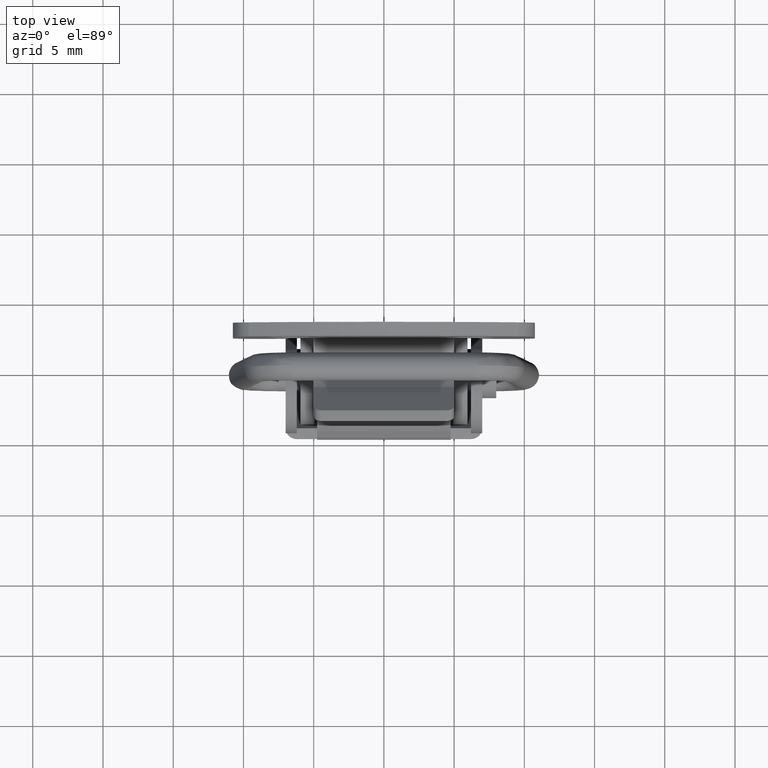
[diagram: clean part render]
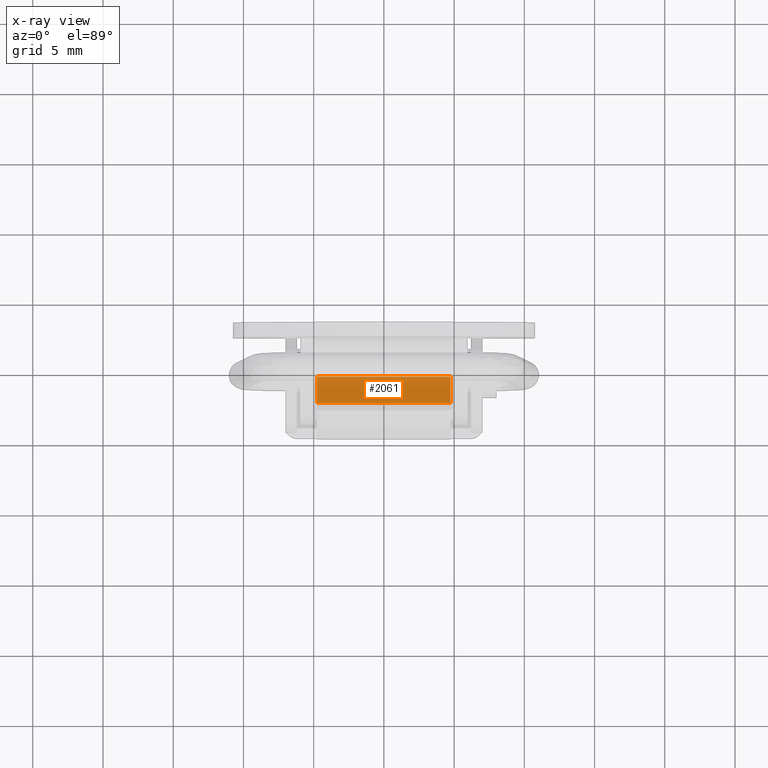
[diagram: x-ray — body ghosted, one internal face saturated and labeled with its STEP entity id]
A machine part, top view, then the same camera in x-ray: the body is ghosted and one INTERNAL B-rep face — a face not visible from any outside direction — is saturated and labeled: STEP entity #2061.
In plain terms, the highlighted face is a freeform B-spline surface patch.
Its self-contained STEP definition (entity closure, byte-faithful):
#2011=CARTESIAN_POINT('',(-4.750000000000000,-0.607096440084168,-6.940592232953030));
#2012=VERTEX_POINT('',#2011);
#2019=CARTESIAN_POINT('',(4.750000000000000,-0.607096440084168,-6.940592232953030));
#2020=VERTEX_POINT('',#2019);
#2026=CARTESIAN_POINT('',(4.750000000000000,-0.607096440084168,-6.940592232953030));
#2027=CARTESIAN_POINT('',(-4.750000000000000,-0.607096440084168,-6.940592232953030));
#2028=QUASI_UNIFORM_CURVE('',1,(#2026,#2027),.UNSPECIFIED.,.F.,.U.);
#2029=EDGE_CURVE('',#2020,#2012,#2028,.T.);
#2034=CARTESIAN_POINT('',(5.224524981587155,-0.514236881156856,-6.913572687695988));
#2035=CARTESIAN_POINT('',(5.224524981587155,-2.559006349786243,-7.508543650686413));
#2036=CARTESIAN_POINT('',(-5.224525236397012,-0.514236881156856,-6.913572687695988));
#2037=CARTESIAN_POINT('',(-5.224525236397012,-2.559006349786243,-7.508543650686413));
#2038=B_SPLINE_SURFACE_WITH_KNOTS('',1,1,((#2034,#2036),(#2035,#2037)),.UNSPECIFIED.,.F.,.F.,.U.,(2,2),(2,2),(0.0,2.129570995914590),(0.0,10.449050217984171),.UNSPECIFIED.);
#2039=CARTESIAN_POINT('',(-4.750000000000000,-2.466146740995315,-7.481524090920451));
#2040=VERTEX_POINT('',#2039);
#2041=CARTESIAN_POINT('',(-4.750000000000000,-0.607096440084168,-6.940592232953030));
#2042=CARTESIAN_POINT('',(-4.750000000000000,-2.466146740995315,-7.481524090920451));
#2043=QUASI_UNIFORM_CURVE('',1,(#2041,#2042),.UNSPECIFIED.,.F.,.U.);
#2044=EDGE_CURVE('',#2012,#2040,#2043,.T.);
#2045=ORIENTED_EDGE('',*,*,#2044,.F.);
#2046=ORIENTED_EDGE('',*,*,#2029,.F.);
#2047=CARTESIAN_POINT('',(4.750000000000000,-2.466146740995315,-7.481524090920451));
#2048=VERTEX_POINT('',#2047);
#2049=CARTESIAN_POINT('',(4.750000000000000,-0.607096440084168,-6.940592232953030));
#2050=CARTESIAN_POINT('',(4.750000000000000,-2.466146740995315,-7.481524090920451));
#2051=QUASI_UNIFORM_CURVE('',1,(#2049,#2050),.UNSPECIFIED.,.F.,.U.);
#2052=EDGE_CURVE('',#2020,#2048,#2051,.T.);
#2053=ORIENTED_EDGE('',*,*,#2052,.T.);
#2054=CARTESIAN_POINT('',(4.750000000000000,-2.466146740995315,-7.481524090920451));
#2055=CARTESIAN_POINT('',(-4.750000000000000,-2.466146740995315,-7.481524090920451));
#2056=QUASI_UNIFORM_CURVE('',1,(#2054,#2055),.UNSPECIFIED.,.F.,.U.);
#2057=EDGE_CURVE('',#2048,#2040,#2056,.T.);
#2058=ORIENTED_EDGE('',*,*,#2057,.T.);
#2059=EDGE_LOOP('',(#2045,#2046,#2053,#2058));
#2060=FACE_OUTER_BOUND('',#2059,.T.);
#2061=ADVANCED_FACE('',(#2060),#2038,.T.);